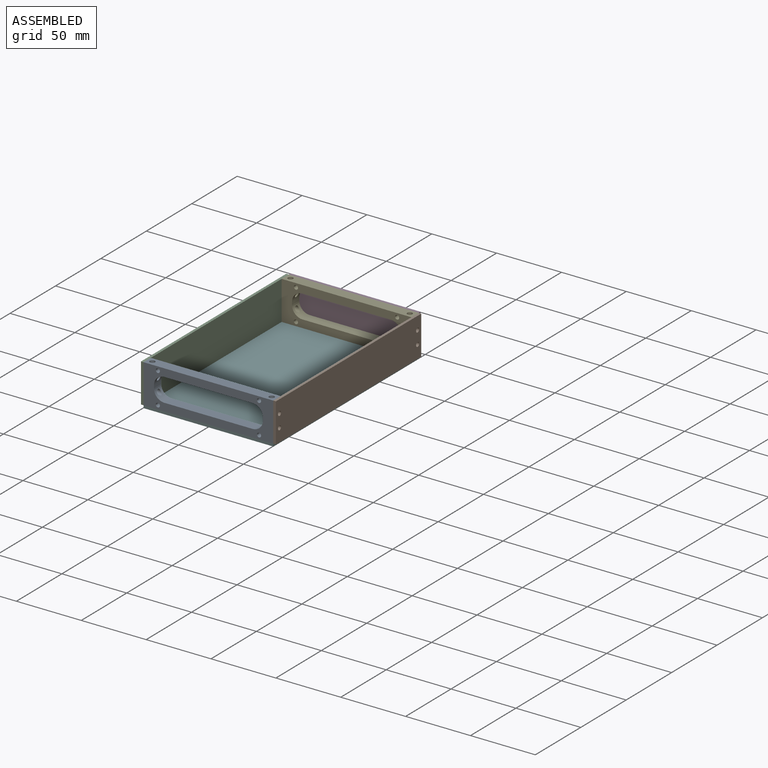
[diagram: assembled view]
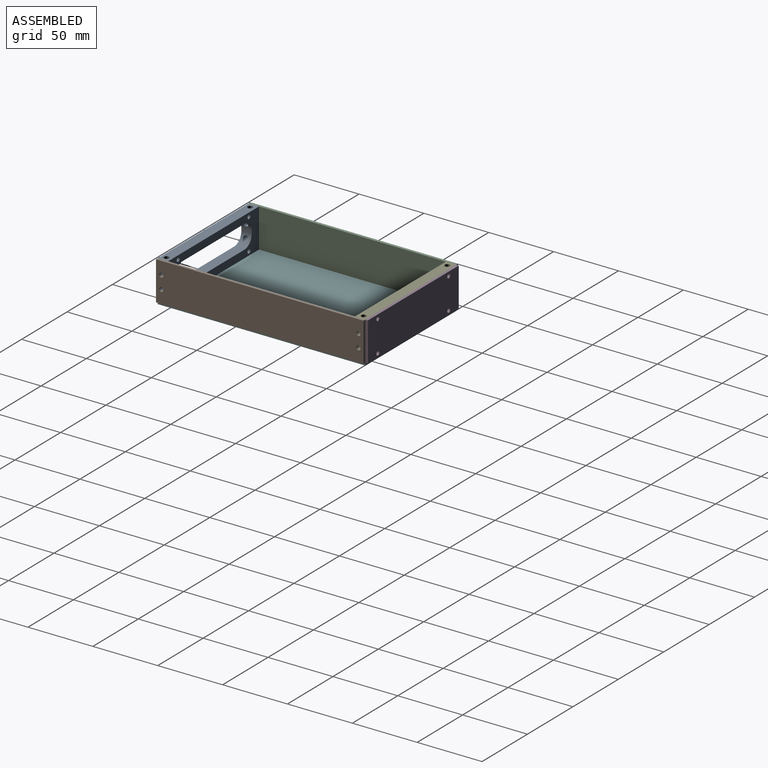
[diagram: assembled view, second angle]
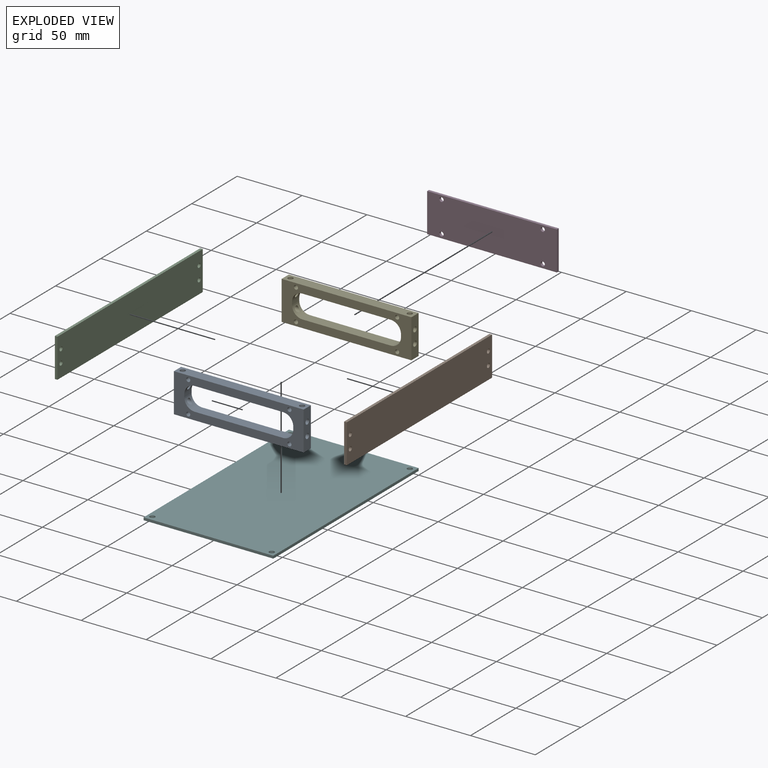
[diagram: exploded view]
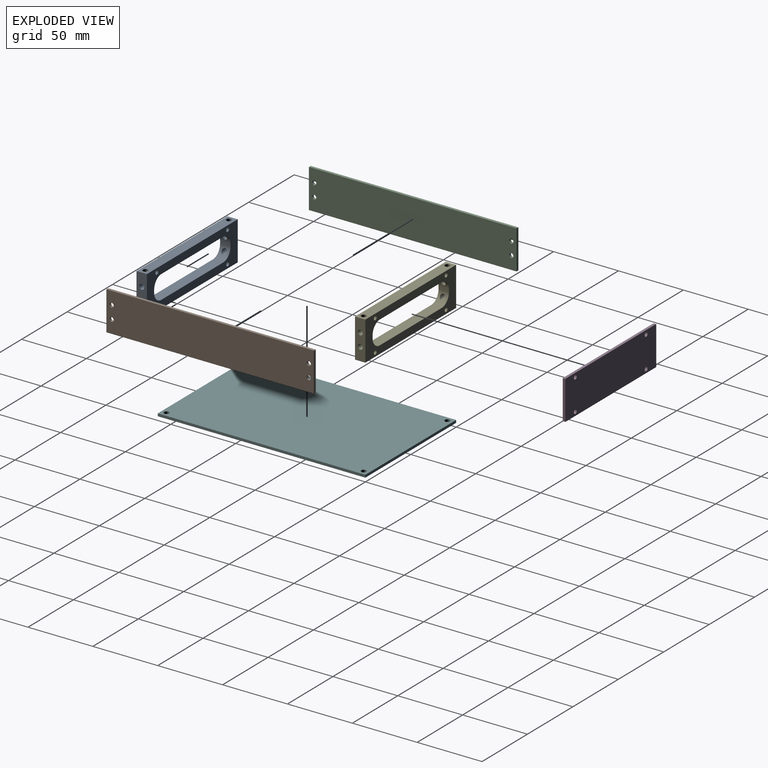
[diagram: exploded view, second angle]
ASSEMBLY  parts=6 mates=5
PART A: 30 faces, bbox 100x8x30 mm
  f0: plane 100x8mm, normal (0,0,-1), area 775.5mm2, adj f1,f15,f16,f17,f26,f28
  f1: plane 30x8mm, normal (1,0,0), area 215.5mm2, adj f0,f2,f16,f17,f20,f21
  f2: plane 100x8mm, normal (0,0,1), area 775.5mm2, adj f1,f15,f16,f17,f22,f24
  f3: cylinder r=8mm len=8mm, axis (0,1,0), area 86.1mm2, adj f4,f10,f16,f17,f19
  f4: plane 68x8mm, normal (0,0,-1), area 544mm2, adj f3,f5,f16,f17
  f5: cylinder r=8mm len=8mm, axis (0,1,0), area 86mm2, adj f4,f6,f16,f17,f21
  f6: plane 8x2mm, normal (-1,0,0), area 16mm2, adj f5,f7,f16,f17
  f7: cylinder r=8mm len=8mm, axis (0,1,0), area 86.1mm2, adj f6,f8,f16,f17,f20
  f8: plane 68x8mm, normal (0,0,1), area 544mm2, adj f7,f9,f16,f17
  f9: cylinder r=8mm len=8mm, axis (0,1,0), area 86.1mm2, adj f8,f10,f16,f17,f18
  f10: plane 8x2mm, normal (1,0,0), area 16mm2, adj f3,f9,f16,f17
  f11: cylinder r=1.59mm len=8mm, axis (0,1,0), area 79.7mm2, adj f16,f17
  f12: cylinder r=1.59mm len=8mm, axis (0,1,0), area 79.7mm2, adj f16,f17
  f13: cylinder r=1.59mm len=8mm, axis (0,1,0), area 79.7mm2, adj f16,f17
  f14: cylinder r=1.59mm len=8mm, axis (0,1,0), area 79.7mm2, adj f16,f17
  f15: plane 30x8mm, normal (-1,0,0), area 215.5mm2, adj f0,f2,f16,f17,f18,f19
  f16: plane 100x30mm, normal (0,-1,0), area 1511.3mm2, adj f0,f1,f2,f3,f4,f5,f6,f7
  f17: plane 100x30mm, normal (0,1,0), area 1511.3mm2, adj f0,f1,f2,f3,f4,f5,f6,f7
  f18: cylinder r=1.98mm len=10.68mm, axis (-1,0,0), area 115mm2, adj f9,f15
  f19: cylinder r=1.98mm len=10.68mm, axis (-1,0,0), area 115mm2, adj f3,f15
  f20: cylinder r=1.98mm len=10.68mm, axis (-1,0,0), area 115mm2, adj f1,f7
  f21: cylinder r=1.98mm len=10.68mm, axis (-1,0,0), area 115mm2, adj f1,f5
  f22: cylinder r=1.98mm len=4mm, axis (0,0,1), area 49.6mm2, adj f2,f23
  f23: plane 3.95x3.95mm, normal (0,0,1), area 12.3mm2, adj f22
  f24: cylinder r=1.98mm len=4mm, axis (0,0,1), area 49.6mm2, adj f2,f25
  f25: plane 3.95x3.95mm, normal (0,0,1), area 12.3mm2, adj f24
  f26: cylinder r=1.98mm len=4mm, axis (0,0,-1), area 49.6mm2, adj f0,f27
  f27: plane 3.95x3.95mm, normal (0,0,-1), area 12.3mm2, adj f26
  f28: cylinder r=1.98mm len=4mm, axis (0,0,-1), area 49.6mm2, adj f0,f29
  f29: plane 3.95x3.95mm, normal (0,0,-1), area 12.3mm2, adj f28
PART B: 10 faces, bbox 160x30x2 mm
  f0: plane 30x2mm, normal (1,0,0), area 60mm2, adj f1,f6,f8,f9
  f1: plane 160x2mm, normal (0,1,0), area 320mm2, adj f0,f2,f8,f9
  f2: plane 30x2mm, normal (-1,0,0), area 60mm2, adj f1,f6,f8,f9
  f3: cylinder r=1.65mm len=3.3mm, axis (0,0,-1), area 20.7mm2, adj f8,f9
  f4: cylinder r=1.65mm len=3.3mm, axis (0,0,-1), area 20.7mm2, adj f8,f9
  f5: cylinder r=1.65mm len=3.3mm, axis (0,0,-1), area 20.7mm2, adj f8,f9
  f6: plane 160x2mm, normal (0,-1,0), area 320mm2, adj f0,f2,f8,f9
  f7: cylinder r=1.65mm len=3.3mm, axis (0,0,-1), area 20.7mm2, adj f8,f9
  f8: plane 160x30mm, normal (0,0,1), area 4765.8mm2, adj f0,f1,f2,f3,f4,f5,f6,f7
  f9: plane 160x30mm, normal (0,0,-1), area 4765.8mm2, adj f0,f1,f2,f3,f4,f5,f6,f7
PART C: same geometry as B
PART D: 10 faces, bbox 100x30x2 mm
  f0: plane 100x2mm, normal (0,-1,0), area 200mm2, adj f1,f7,f8,f9
  f1: plane 30x2mm, normal (1,0,0), area 60mm2, adj f0,f2,f8,f9
  f2: plane 100x2mm, normal (0,1,0), area 200mm2, adj f1,f7,f8,f9
  f3: cylinder r=1.65mm len=3.3mm, axis (0,0,-1), area 20.7mm2, adj f8,f9
  f4: cylinder r=1.65mm len=3.3mm, axis (0,0,-1), area 20.7mm2, adj f8,f9
  f5: cylinder r=1.65mm len=3.3mm, axis (0,0,-1), area 20.7mm2, adj f8,f9
  f6: cylinder r=1.65mm len=3.3mm, axis (0,0,-1), area 20.7mm2, adj f8,f9
  f7: plane 30x2mm, normal (-1,0,0), area 60mm2, adj f0,f2,f8,f9
  f8: plane 100x30mm, normal (0,0,1), area 2965.8mm2, adj f0,f1,f2,f3,f4,f5,f6,f7
  f9: plane 100x30mm, normal (0,0,-1), area 2965.8mm2, adj f0,f1,f2,f3,f4,f5,f6,f7
PART E: same geometry as A
PART F: 10 faces, bbox 100x160x2 mm
  f0: plane 100x2mm, normal (0,1,0), area 200mm2, adj f1,f6,f8,f9
  f1: plane 160x2mm, normal (-1,0,0), area 320mm2, adj f0,f2,f8,f9
  f2: plane 100x2mm, normal (0,-1,0), area 200mm2, adj f1,f6,f8,f9
  f3: cylinder r=1.98mm len=3.95mm, axis (0,0,-1), area 24.8mm2, adj f8,f9
  f4: cylinder r=1.98mm len=3.95mm, axis (0,0,-1), area 24.8mm2, adj f8,f9
  f5: cylinder r=1.98mm len=3.95mm, axis (0,0,-1), area 24.8mm2, adj f8,f9
  f6: plane 160x2mm, normal (1,0,0), area 320mm2, adj f0,f2,f8,f9
  f7: cylinder r=1.98mm len=3.95mm, axis (0,0,-1), area 24.8mm2, adj f8,f9
  f8: plane 160x100mm, normal (0,0,1), area 15951mm2, adj f0,f1,f2,f3,f4,f5,f6,f7
  f9: plane 160x100mm, normal (0,0,-1), area 15951mm2, adj f0,f1,f2,f3,f4,f5,f6,f7
PLACE A t=(0,-152,0)mm
PLACE B rot(axis=(0.58,-0.58,-0.58),120deg) t=(52,-80,0)mm
PLACE C rot(axis=(0.58,-0.58,-0.58),120deg) t=(-50,-80,0)mm
PLACE D rot(axis=(-1,0,0),90deg) t=(0,0,0)mm
PLACE E at identity
PLACE F t=(-8.68,-14.08,-17)mm
MATE fastened C.f5 <-> E.f19  axis (1,0,0) through (-50,-4,5)mm
MATE fastened D.f5 <-> E.f12  axis (0,-1,0) through (-39,0,12)mm
MATE fastened A.f19 <-> C.f7  axis (-1,0,0) through (-50,-156,5)mm
MATE fastened B.f5 <-> E.f19  axis (-1,0,0) through (50,-4,5)mm
MATE fastened F.f5 <-> E.f26  axis (0,0,1) through (-46,-4,-15)mm
